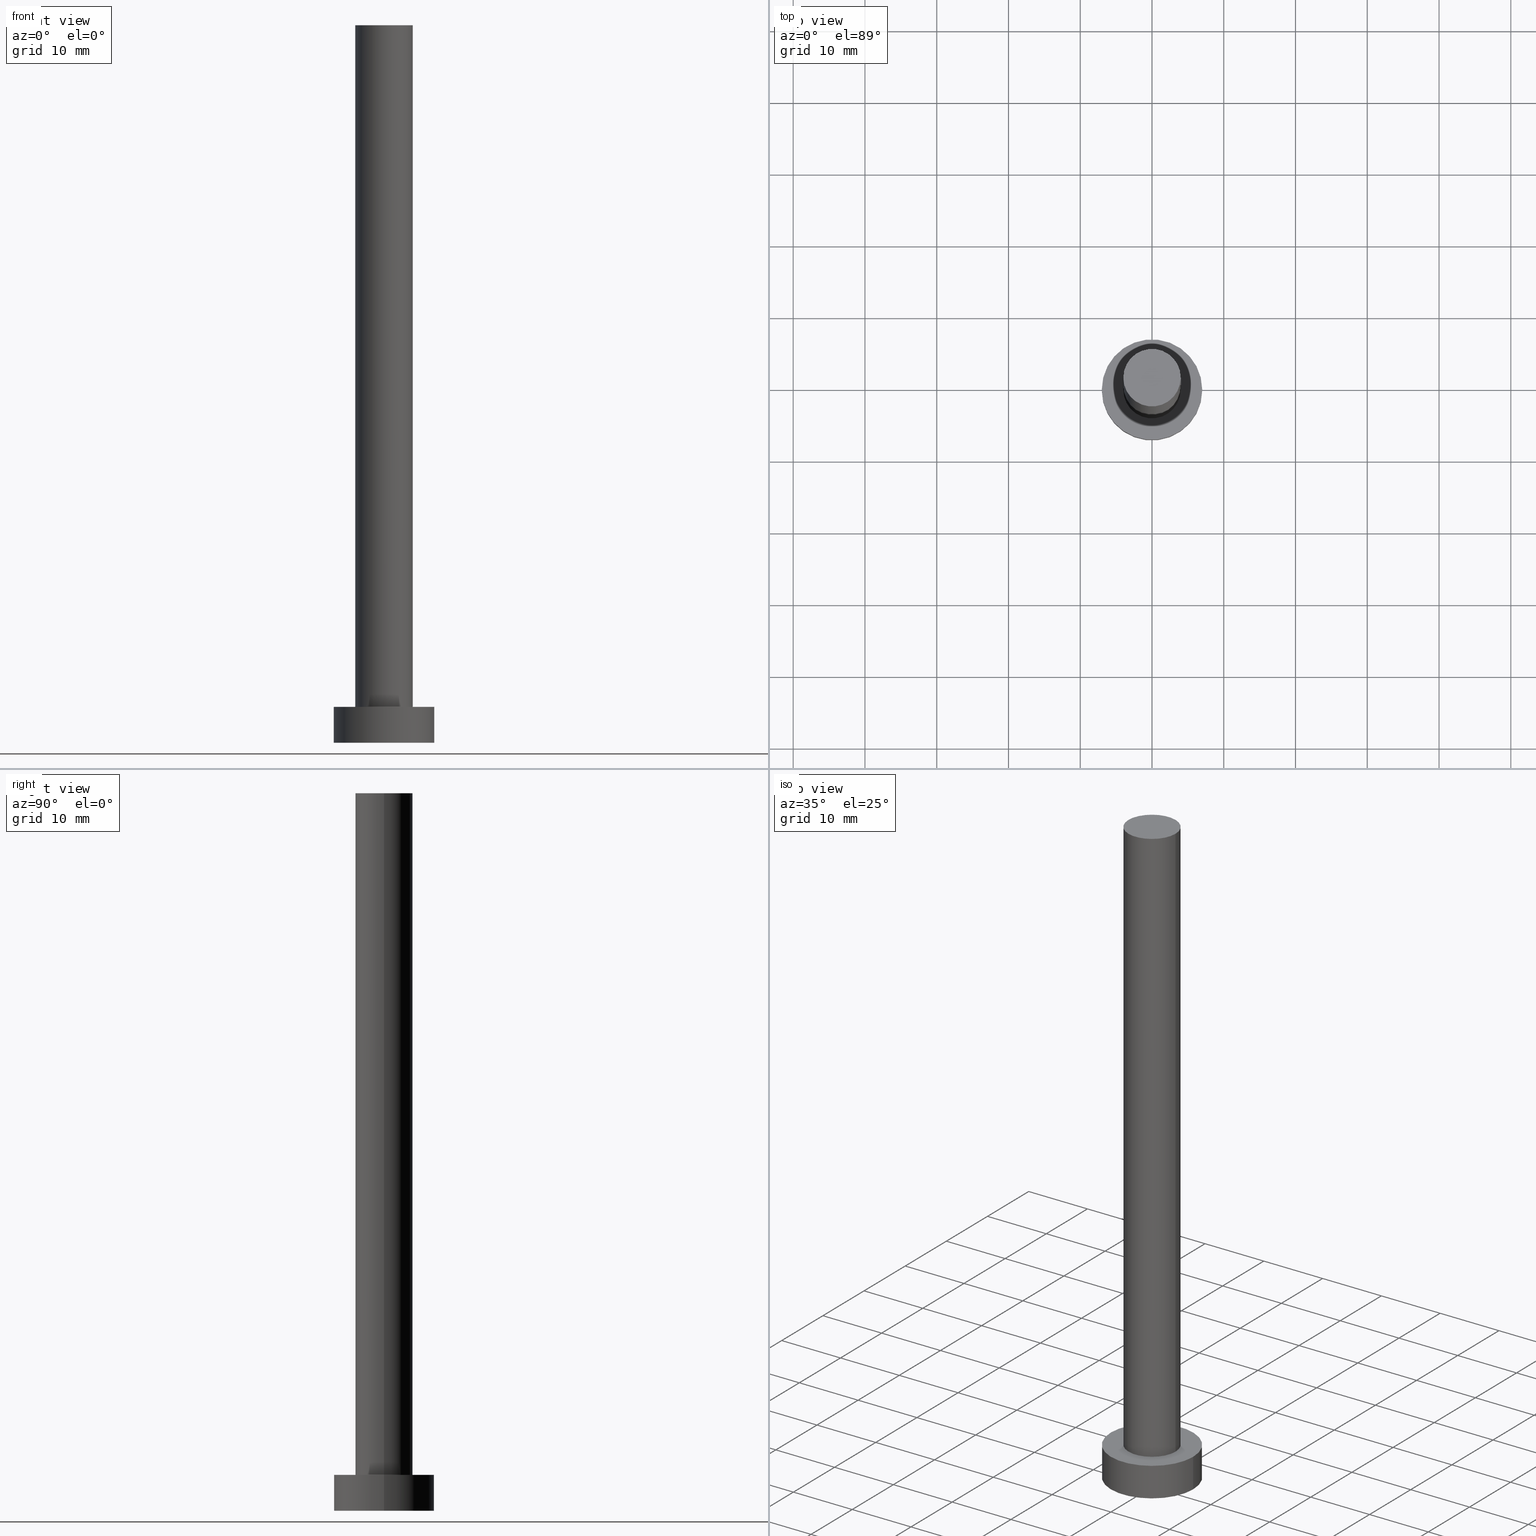
[diagram: canonical four-view strip — front | top / right | iso, engineering-drawing reading convention]
A machine part, canonical four-view strip (front | top / right | iso — engineering-drawing reading convention). The complete STEP part file that produces these views, byte-faithful:
ISO-10303-21;
HEADER;
FILE_DESCRIPTION (( 'STEP AP203' ),
    '1' );
FILE_NAME ('9c9f.STEP',
    '2023-02-13T11:45:39',
    ( '' ),
    ( '' ),
    'SwSTEP 2.0',
    'SolidWorks 2019',
    '' );
FILE_SCHEMA (( 'CONFIG_CONTROL_DESIGN' ));
ENDSEC;

DATA;
#1 = FACE_OUTER_BOUND ( 'NONE', #44, .T. ) ;
#2 = VECTOR ( 'NONE', #110, 1000.000000000000000 ) ;
#3 = APPROVAL_PERSON_ORGANIZATION ( #137, #144, #142 ) ;
#4 = EDGE_CURVE ( 'NONE', #101, #65, #156, .T. ) ;
#5 = PERSON ( 'NEUR�EN�', 'NEUR�EN�', 'NEUR�EN�', ('NEUR�EN�'), ('NEUR�EN�'), ('NEUR�EN�') ) ;
#6 = CARTESIAN_POINT ( 'NONE',  ( 7.000000000000000000, 8.572527594031473190E-16, 0.000000000000000000 ) ) ;
#7 = COORDINATED_UNIVERSAL_TIME_OFFSET ( 1, 0, .AHEAD. ) ;
#8 = LINE ( 'NONE', #171, #2 ) ;
#9 = DATE_AND_TIME ( #92, #255 ) ;
#10 = CYLINDRICAL_SURFACE ( 'NONE', #176, 4.000000000000000000 ) ;
#11 = CARTESIAN_POINT ( 'NONE',  ( 0.000000000000000000, 0.000000000000000000, 5.000000000000000000 ) ) ;
#12 = DIRECTION ( 'NONE',  ( 0.000000000000000000, 0.000000000000000000, 1.000000000000000000 ) ) ;
#13 = CC_DESIGN_APPROVAL ( #144, ( #80 ) ) ;
#14 = ADVANCED_FACE ( 'NONE', ( #1 ), #69, .T. ) ;
#15 = PRODUCT ( '9c9f', '9c9f', '', ( #218 ) ) ;
#16 = CARTESIAN_POINT ( 'NONE',  ( 4.000000000000000000, 4.898587196589412829E-16, 100.0000000000000000 ) ) ;
#17 = PERSON_AND_ORGANIZATION ( #5, #54 ) ;
#18 = ORIENTED_EDGE ( 'NONE', *, *, #37, .T. ) ;
#19 = ADVANCED_FACE ( 'NONE', ( #88 ), #235, .F. ) ;
#20 = CARTESIAN_POINT ( 'NONE',  ( 0.000000000000000000, 0.000000000000000000, 5.000000000000000000 ) ) ;
#21 = ORIENTED_EDGE ( 'NONE', *, *, #191, .T. ) ;
#22 = UNCERTAINTY_MEASURE_WITH_UNIT (LENGTH_MEASURE( 1.000000000000000082E-05 ), #49, 'distance_accuracy_value', 'NONE');
#23 = ORIENTED_EDGE ( 'NONE', *, *, #219, .T. ) ;
#24 = CIRCLE ( 'NONE', #140, 4.000000000000000000 ) ;
#25 = DATE_AND_TIME ( #179, #58 ) ;
#26 = CC_DESIGN_PERSON_AND_ORGANIZATION_ASSIGNMENT ( #247, #64, ( #15 ) ) ;
#27 = CARTESIAN_POINT ( 'NONE',  ( 0.000000000000000000, 0.000000000000000000, 5.000000000000000000 ) ) ;
#28 =( GEOMETRIC_REPRESENTATION_CONTEXT ( 3 ) GLOBAL_UNCERTAINTY_ASSIGNED_CONTEXT ( ( #22 ) ) GLOBAL_UNIT_ASSIGNED_CONTEXT ( ( #49, #197, #170 ) ) REPRESENTATION_CONTEXT ( 'NONE', 'WORKASPACE' ) );
#29 = DIRECTION ( 'NONE',  ( 0.000000000000000000, 0.000000000000000000, 1.000000000000000000 ) ) ;
#30 = CARTESIAN_POINT ( 'NONE',  ( 0.000000000000000000, 0.000000000000000000, 5.000000000000000000 ) ) ;
#31 = CC_DESIGN_PERSON_AND_ORGANIZATION_ASSIGNMENT ( #105, #254, ( #80 ) ) ;
#32 = VECTOR ( 'NONE', #246, 1000.000000000000000 ) ;
#33 = DIRECTION ( 'NONE',  ( 1.000000000000000000, 0.000000000000000000, -0.000000000000000000 ) ) ;
#34 = DIRECTION ( 'NONE',  ( 0.000000000000000000, 0.000000000000000000, 1.000000000000000000 ) ) ;
#35 = EDGE_LOOP ( 'NONE', ( #97, #42 ) ) ;
#36 = PERSON_AND_ORGANIZATION ( #5, #54 ) ;
#37 = EDGE_CURVE ( 'NONE', #209, #101, #213, .T. ) ;
#38 = ORIENTED_EDGE ( 'NONE', *, *, #37, .F. ) ;
#39 = EDGE_LOOP ( 'NONE', ( #226, #63, #178, #23 ) ) ;
#40 = DIRECTION ( 'NONE',  ( 1.000000000000000000, 0.000000000000000000, -0.000000000000000000 ) ) ;
#41 = AXIS2_PLACEMENT_3D ( 'NONE', #20, #67, #43 ) ;
#42 = ORIENTED_EDGE ( 'NONE', *, *, #236, .F. ) ;
#43 = DIRECTION ( 'NONE',  ( -1.000000000000000000, 0.000000000000000000, 0.000000000000000000 ) ) ;
#44 = EDGE_LOOP ( 'NONE', ( #244, #121, #159, #196 ) ) ;
#45 = DATE_TIME_ROLE ( 'creation_date' ) ;
#46 = CARTESIAN_POINT ( 'NONE',  ( -7.000000000000000000, 0.000000000000000000, 5.000000000000000000 ) ) ;
#47 = ORIENTED_EDGE ( 'NONE', *, *, #160, .F. ) ;
#48 = EDGE_CURVE ( 'NONE', #181, #60, #70, .T. ) ;
#49 =( LENGTH_UNIT ( ) NAMED_UNIT ( * ) SI_UNIT ( .MILLI., .METRE. ) );
#50 = AXIS2_PLACEMENT_3D ( 'NONE', #234, #143, #198 ) ;
#51 = COORDINATED_UNIVERSAL_TIME_OFFSET ( 1, 0, .AHEAD. ) ;
#52 = EDGE_CURVE ( 'NONE', #101, #209, #24, .T. ) ;
#53 = CALENDAR_DATE ( 2023, 13, 2 ) ;
#54 = ORGANIZATION ( 'NEUR�EN�', 'NEUR�EN�', '' ) ;
#55 = CARTESIAN_POINT ( 'NONE',  ( 0.000000000000000000, 0.000000000000000000, 5.000000000000000000 ) ) ;
#56 = PLANE ( 'NONE',  #202 ) ;
#57 = CARTESIAN_POINT ( 'NONE',  ( 0.000000000000000000, 0.000000000000000000, 100.0000000000000000 ) ) ;
#58 = LOCAL_TIME ( 12, 45, 39.00000000000000000, #212 ) ;
#59 = CARTESIAN_POINT ( 'NONE',  ( 0.000000000000000000, 0.000000000000000000, 100.0000000000000000 ) ) ;
#60 = VERTEX_POINT ( 'NONE', #77 ) ;
#61 = AXIS2_PLACEMENT_3D ( 'NONE', #183, #233, #71 ) ;
#62 = PRODUCT_DEFINITION_FORMATION_WITH_SPECIFIED_SOURCE ( 'LIBOVOLN�', '', #15, .NOT_KNOWN. ) ;
#63 = ORIENTED_EDGE ( 'NONE', *, *, #48, .F. ) ;
#64 = PERSON_AND_ORGANIZATION_ROLE ( 'design_owner' ) ;
#65 = VERTEX_POINT ( 'NONE', #73 ) ;
#66 = DIRECTION ( 'NONE',  ( 0.000000000000000000, 0.000000000000000000, 1.000000000000000000 ) ) ;
#67 = DIRECTION ( 'NONE',  ( -0.000000000000000000, -0.000000000000000000, -1.000000000000000000 ) ) ;
#68 = CC_DESIGN_PERSON_AND_ORGANIZATION_ASSIGNMENT ( #36, #208, ( #62 ) ) ;
#69 = CYLINDRICAL_SURFACE ( 'NONE', #61, 4.000000000000000000 ) ;
#70 = CIRCLE ( 'NONE', #86, 7.000000000000000000 ) ;
#71 = DIRECTION ( 'NONE',  ( -1.000000000000000000, 0.000000000000000000, 0.000000000000000000 ) ) ;
#72 = DIRECTION ( 'NONE',  ( 1.000000000000000000, 0.000000000000000000, 0.000000000000000000 ) ) ;
#73 = CARTESIAN_POINT ( 'NONE',  ( -4.000000000000000000, 0.000000000000000000, 5.000000000000000000 ) ) ;
#74 = FACE_OUTER_BOUND ( 'NONE', #99, .T. ) ;
#75 = DIRECTION ( 'NONE',  ( 1.000000000000000000, 0.000000000000000000, 0.000000000000000000 ) ) ;
#76 = CARTESIAN_POINT ( 'NONE',  ( -7.000000000000000000, 0.000000000000000000, 5.000000000000000000 ) ) ;
#77 = CARTESIAN_POINT ( 'NONE',  ( 7.000000000000000000, 8.572527594031473190E-16, 5.000000000000000000 ) ) ;
#78 = EDGE_CURVE ( 'NONE', #60, #115, #8, .T. ) ;
#79 = VECTOR ( 'NONE', #107, 1000.000000000000000 ) ;
#80 = PRODUCT_DEFINITION ( 'NEZN�M�', '', #62, #252 ) ;
#81 = EDGE_LOOP ( 'NONE', ( #124, #47 ) ) ;
#82 = APPLICATION_PROTOCOL_DEFINITION ( 'international standard', 'config_control_design', 1994, #169 ) ;
#83 = FACE_OUTER_BOUND ( 'NONE', #100, .T. ) ;
#84 = EDGE_LOOP ( 'NONE', ( #38, #21, #161, #203 ) ) ;
#85 = CC_DESIGN_APPROVAL ( #133, ( #87 ) ) ;
#86 = AXIS2_PLACEMENT_3D ( 'NONE', #30, #12, #96 ) ;
#87 = SECURITY_CLASSIFICATION ( '', '', #103 ) ;
#88 = FACE_OUTER_BOUND ( 'NONE', #81, .T. ) ;
#89 = CARTESIAN_POINT ( 'NONE',  ( 0.000000000000000000, 0.000000000000000000, 0.000000000000000000 ) ) ;
#90 = CARTESIAN_POINT ( 'NONE',  ( 0.000000000000000000, 0.000000000000000000, 5.000000000000000000 ) ) ;
#91 = PRODUCT_RELATED_PRODUCT_CATEGORY ( 'detail', '', ( #15 ) ) ;
#92 = CALENDAR_DATE ( 2023, 13, 2 ) ;
#93 = LOCAL_TIME ( 12, 45, 39.00000000000000000, #51 ) ;
#94 = DIRECTION ( 'NONE',  ( -1.000000000000000000, 0.000000000000000000, 0.000000000000000000 ) ) ;
#95 = DIRECTION ( 'NONE',  ( 1.000000000000000000, 0.000000000000000000, 0.000000000000000000 ) ) ;
#96 = DIRECTION ( 'NONE',  ( 1.000000000000000000, 0.000000000000000000, 0.000000000000000000 ) ) ;
#97 = ORIENTED_EDGE ( 'NONE', *, *, #126, .F. ) ;
#98 = PERSON_AND_ORGANIZATION_ROLE ( 'creator' ) ;
#99 = EDGE_LOOP ( 'NONE', ( #119, #224 ) ) ;
#100 = EDGE_LOOP ( 'NONE', ( #157, #18 ) ) ;
#101 = VERTEX_POINT ( 'NONE', #217 ) ;
#102 = CC_DESIGN_DATE_AND_TIME_ASSIGNMENT ( #231, #45, ( #80 ) ) ;
#103 = SECURITY_CLASSIFICATION_LEVEL ( 'unclassified' ) ;
#104 = CIRCLE ( 'NONE', #50, 4.000000000000000000 ) ;
#105 = PERSON_AND_ORGANIZATION ( #5, #54 ) ;
#106 = COORDINATED_UNIVERSAL_TIME_OFFSET ( 1, 0, .AHEAD. ) ;
#107 = DIRECTION ( 'NONE',  ( -0.000000000000000000, -0.000000000000000000, -1.000000000000000000 ) ) ;
#108 = DIRECTION ( 'NONE',  ( 0.000000000000000000, 0.000000000000000000, 1.000000000000000000 ) ) ;
#109 = CIRCLE ( 'NONE', #145, 7.000000000000000000 ) ;
#110 = DIRECTION ( 'NONE',  ( -0.000000000000000000, -0.000000000000000000, -1.000000000000000000 ) ) ;
#111 = CARTESIAN_POINT ( 'NONE',  ( 0.000000000000000000, 0.000000000000000000, 0.000000000000000000 ) ) ;
#112 = DIRECTION ( 'NONE',  ( 0.000000000000000000, 0.000000000000000000, 1.000000000000000000 ) ) ;
#113 = CARTESIAN_POINT ( 'NONE',  ( 0.000000000000000000, 0.000000000000000000, 100.0000000000000000 ) ) ;
#114 = DATE_TIME_ROLE ( 'classification_date' ) ;
#115 = VERTEX_POINT ( 'NONE', #6 ) ;
#116 = ORIENTED_EDGE ( 'NONE', *, *, #240, .F. ) ;
#117 = AXIS2_PLACEMENT_3D ( 'NONE', #89, #214, #199 ) ;
#118 = CC_DESIGN_APPROVAL ( #130, ( #62 ) ) ;
#119 = ORIENTED_EDGE ( 'NONE', *, *, #48, .T. ) ;
#120 = CARTESIAN_POINT ( 'NONE',  ( 0.000000000000000000, 0.000000000000000000, 0.000000000000000000 ) ) ;
#121 = ORIENTED_EDGE ( 'NONE', *, *, #52, .F. ) ;
#122 = COORDINATED_UNIVERSAL_TIME_OFFSET ( 1, 0, .AHEAD. ) ;
#123 = DATE_AND_TIME ( #163, #243 ) ;
#124 = ORIENTED_EDGE ( 'NONE', *, *, #219, .F. ) ;
#125 = CARTESIAN_POINT ( 'NONE',  ( 4.000000000000000000, 4.898587196589412829E-16, 5.000000000000000000 ) ) ;
#126 = EDGE_CURVE ( 'NONE', #65, #251, #151, .T. ) ;
#127 = AXIS2_PLACEMENT_3D ( 'NONE', #27, #139, #210 ) ;
#128 = PERSON_AND_ORGANIZATION ( #5, #54 ) ;
#129 = AXIS2_PLACEMENT_3D ( 'NONE', #59, #66, #40 ) ;
#130 = APPROVAL ( #162, 'NEUR�EN�' ) ;
#131 = ADVANCED_BREP_SHAPE_REPRESENTATION ( '9c9f', ( #188, #138 ), #28 ) ;
#132 = DIRECTION ( 'NONE',  ( -0.000000000000000000, -0.000000000000000000, -1.000000000000000000 ) ) ;
#133 = APPROVAL ( #237, 'NEUR�EN�' ) ;
#134 = LINE ( 'NONE', #16, #232 ) ;
#135 = CYLINDRICAL_SURFACE ( 'NONE', #41, 7.000000000000000000 ) ;
#136 = ADVANCED_FACE ( 'NONE', ( #216, #74 ), #56, .T. ) ;
#137 = PERSON_AND_ORGANIZATION ( #5, #54 ) ;
#138 = AXIS2_PLACEMENT_3D ( 'NONE', #172, #239, #75 ) ;
#139 = DIRECTION ( 'NONE',  ( 0.000000000000000000, 0.000000000000000000, 1.000000000000000000 ) ) ;
#140 = AXIS2_PLACEMENT_3D ( 'NONE', #200, #29, #95 ) ;
#141 = APPROVAL_PERSON_ORGANIZATION ( #128, #130, #195 ) ;
#142 = APPROVAL_ROLE ( '' ) ;
#143 = DIRECTION ( 'NONE',  ( 0.000000000000000000, 0.000000000000000000, 1.000000000000000000 ) ) ;
#144 = APPROVAL ( #206, 'NEUR�EN�' ) ;
#145 = AXIS2_PLACEMENT_3D ( 'NONE', #111, #112, #241 ) ;
#146 = APPROVAL_PERSON_ORGANIZATION ( #182, #133, #187 ) ;
#147 = DIRECTION ( 'NONE',  ( 1.000000000000000000, 0.000000000000000000, 0.000000000000000000 ) ) ;
#148 = APPROVAL_DATE_TIME ( #9, #133 ) ;
#149 = APPLICATION_CONTEXT ( 'configuration controlled 3d designs of mechanical parts and assemblies' ) ;
#150 = APPLICATION_PROTOCOL_DEFINITION ( 'international standard', 'config_control_design', 1994, #149 ) ;
#151 = CIRCLE ( 'NONE', #205, 4.000000000000000000 ) ;
#152 = AXIS2_PLACEMENT_3D ( 'NONE', #11, #174, #242 ) ;
#153 = CYLINDRICAL_SURFACE ( 'NONE', #152, 7.000000000000000000 ) ;
#154 = LOCAL_TIME ( 12, 45, 39.00000000000000000, #106 ) ;
#155 = CC_DESIGN_PERSON_AND_ORGANIZATION_ASSIGNMENT ( #17, #98, ( #62 ) ) ;
#156 = LINE ( 'NONE', #220, #32 ) ;
#157 = ORIENTED_EDGE ( 'NONE', *, *, #52, .T. ) ;
#158 = FACE_OUTER_BOUND ( 'NONE', #250, .T. ) ;
#159 = ORIENTED_EDGE ( 'NONE', *, *, #4, .T. ) ;
#160 = EDGE_CURVE ( 'NONE', #115, #228, #109, .T. ) ;
#161 = ORIENTED_EDGE ( 'NONE', *, *, #236, .T. ) ;
#162 = APPROVAL_STATUS ( 'not_yet_approved' ) ;
#163 = CALENDAR_DATE ( 2023, 13, 2 ) ;
#164 = CALENDAR_DATE ( 2023, 13, 2 ) ;
#165 = CLOSED_SHELL ( 'NONE', ( #168, #215, #184, #136, #19, #14, #207 ) ) ;
#166 = PERSON_AND_ORGANIZATION_ROLE ( 'classification_officer' ) ;
#167 = CIRCLE ( 'NONE', #186, 7.000000000000000000 ) ;
#168 = ADVANCED_FACE ( 'NONE', ( #189 ), #10, .T. ) ;
#169 = APPLICATION_CONTEXT ( 'configuration controlled 3d designs of mechanical parts and assemblies' ) ;
#170 =( NAMED_UNIT ( * ) SI_UNIT ( $, .STERADIAN. ) SOLID_ANGLE_UNIT ( ) );
#171 = CARTESIAN_POINT ( 'NONE',  ( 7.000000000000000000, 8.572527594031473190E-16, 5.000000000000000000 ) ) ;
#172 = CARTESIAN_POINT ( 'NONE',  ( 0.000000000000000000, 0.000000000000000000, 0.000000000000000000 ) ) ;
#173 = DIRECTION ( 'NONE',  ( 0.000000000000000000, 0.000000000000000000, 1.000000000000000000 ) ) ;
#174 = DIRECTION ( 'NONE',  ( -0.000000000000000000, -0.000000000000000000, -1.000000000000000000 ) ) ;
#175 = DIRECTION ( 'NONE',  ( -0.000000000000000000, -0.000000000000000000, -1.000000000000000000 ) ) ;
#176 = AXIS2_PLACEMENT_3D ( 'NONE', #57, #132, #94 ) ;
#177 = APPROVAL_DATE_TIME ( #123, #130 ) ;
#178 = ORIENTED_EDGE ( 'NONE', *, *, #230, .T. ) ;
#179 = CALENDAR_DATE ( 2023, 13, 2 ) ;
#180 = CC_DESIGN_PERSON_AND_ORGANIZATION_ASSIGNMENT ( #204, #166, ( #87 ) ) ;
#181 = VERTEX_POINT ( 'NONE', #76 ) ;
#182 = PERSON_AND_ORGANIZATION ( #5, #54 ) ;
#183 = CARTESIAN_POINT ( 'NONE',  ( 0.000000000000000000, 0.000000000000000000, 100.0000000000000000 ) ) ;
#184 = ADVANCED_FACE ( 'NONE', ( #190 ), #153, .T. ) ;
#185 = LINE ( 'NONE', #46, #79 ) ;
#186 = AXIS2_PLACEMENT_3D ( 'NONE', #120, #108, #72 ) ;
#187 = APPROVAL_ROLE ( '' ) ;
#188 = MANIFOLD_SOLID_BREP ( 'P�idat vysunut�m3', #165 ) ;
#189 = FACE_OUTER_BOUND ( 'NONE', #84, .T. ) ;
#190 = FACE_OUTER_BOUND ( 'NONE', #39, .T. ) ;
#191 = EDGE_CURVE ( 'NONE', #209, #251, #134, .T. ) ;
#192 = DIRECTION ( 'NONE',  ( 1.000000000000000000, 0.000000000000000000, 0.000000000000000000 ) ) ;
#193 = CC_DESIGN_DATE_AND_TIME_ASSIGNMENT ( #221, #114, ( #87 ) ) ;
#194 = ORIENTED_EDGE ( 'NONE', *, *, #230, .F. ) ;
#195 = APPROVAL_ROLE ( '' ) ;
#196 = ORIENTED_EDGE ( 'NONE', *, *, #126, .T. ) ;
#197 =( NAMED_UNIT ( * ) PLANE_ANGLE_UNIT ( ) SI_UNIT ( $, .RADIAN. ) );
#198 = DIRECTION ( 'NONE',  ( 1.000000000000000000, 0.000000000000000000, 0.000000000000000000 ) ) ;
#199 = DIRECTION ( 'NONE',  ( 1.000000000000000000, 0.000000000000000000, -0.000000000000000000 ) ) ;
#200 = CARTESIAN_POINT ( 'NONE',  ( 0.000000000000000000, 0.000000000000000000, 100.0000000000000000 ) ) ;
#201 = SHAPE_DEFINITION_REPRESENTATION ( #225, #131 ) ;
#202 = AXIS2_PLACEMENT_3D ( 'NONE', #55, #34, #33 ) ;
#203 = ORIENTED_EDGE ( 'NONE', *, *, #4, .F. ) ;
#204 = PERSON_AND_ORGANIZATION ( #5, #54 ) ;
#205 = AXIS2_PLACEMENT_3D ( 'NONE', #90, #238, #147 ) ;
#206 = APPROVAL_STATUS ( 'not_yet_approved' ) ;
#207 = ADVANCED_FACE ( 'NONE', ( #83 ), #223, .T. ) ;
#208 = PERSON_AND_ORGANIZATION_ROLE ( 'design_supplier' ) ;
#209 = VERTEX_POINT ( 'NONE', #245 ) ;
#210 = DIRECTION ( 'NONE',  ( 1.000000000000000000, 0.000000000000000000, 0.000000000000000000 ) ) ;
#211 = APPROVAL_DATE_TIME ( #25, #144 ) ;
#212 = COORDINATED_UNIVERSAL_TIME_OFFSET ( 1, 0, .AHEAD. ) ;
#213 = CIRCLE ( 'NONE', #253, 4.000000000000000000 ) ;
#214 = DIRECTION ( 'NONE',  ( 0.000000000000000000, 0.000000000000000000, 1.000000000000000000 ) ) ;
#215 = ADVANCED_FACE ( 'NONE', ( #158 ), #135, .T. ) ;
#216 = FACE_BOUND ( 'NONE', #35, .T. ) ;
#217 = CARTESIAN_POINT ( 'NONE',  ( -4.000000000000000000, 0.000000000000000000, 100.0000000000000000 ) ) ;
#218 = MECHANICAL_CONTEXT ( 'NONE', #149, 'mechanical' ) ;
#219 = EDGE_CURVE ( 'NONE', #228, #115, #167, .T. ) ;
#220 = CARTESIAN_POINT ( 'NONE',  ( -4.000000000000000000, 0.000000000000000000, 100.0000000000000000 ) ) ;
#221 = DATE_AND_TIME ( #53, #93 ) ;
#222 = CC_DESIGN_SECURITY_CLASSIFICATION ( #87, ( #62 ) ) ;
#223 = PLANE ( 'NONE',  #129 ) ;
#224 = ORIENTED_EDGE ( 'NONE', *, *, #240, .T. ) ;
#225 = PRODUCT_DEFINITION_SHAPE ( 'NONE', 'NONE',  #80 ) ;
#226 = ORIENTED_EDGE ( 'NONE', *, *, #78, .F. ) ;
#227 = ORIENTED_EDGE ( 'NONE', *, *, #78, .T. ) ;
#228 = VERTEX_POINT ( 'NONE', #229 ) ;
#229 = CARTESIAN_POINT ( 'NONE',  ( -7.000000000000000000, 0.000000000000000000, 0.000000000000000000 ) ) ;
#230 = EDGE_CURVE ( 'NONE', #181, #228, #185, .T. ) ;
#231 = DATE_AND_TIME ( #164, #154 ) ;
#232 = VECTOR ( 'NONE', #175, 1000.000000000000000 ) ;
#233 = DIRECTION ( 'NONE',  ( -0.000000000000000000, -0.000000000000000000, -1.000000000000000000 ) ) ;
#234 = CARTESIAN_POINT ( 'NONE',  ( 0.000000000000000000, 0.000000000000000000, 5.000000000000000000 ) ) ;
#235 = PLANE ( 'NONE',  #117 ) ;
#236 = EDGE_CURVE ( 'NONE', #251, #65, #104, .T. ) ;
#237 = APPROVAL_STATUS ( 'not_yet_approved' ) ;
#238 = DIRECTION ( 'NONE',  ( 0.000000000000000000, 0.000000000000000000, 1.000000000000000000 ) ) ;
#239 = DIRECTION ( 'NONE',  ( 0.000000000000000000, 0.000000000000000000, 1.000000000000000000 ) ) ;
#240 = EDGE_CURVE ( 'NONE', #60, #181, #248, .T. ) ;
#241 = DIRECTION ( 'NONE',  ( 1.000000000000000000, 0.000000000000000000, 0.000000000000000000 ) ) ;
#242 = DIRECTION ( 'NONE',  ( -1.000000000000000000, 0.000000000000000000, 0.000000000000000000 ) ) ;
#243 = LOCAL_TIME ( 12, 45, 39.00000000000000000, #122 ) ;
#244 = ORIENTED_EDGE ( 'NONE', *, *, #191, .F. ) ;
#245 = CARTESIAN_POINT ( 'NONE',  ( 4.000000000000000000, 4.898587196589412829E-16, 100.0000000000000000 ) ) ;
#246 = DIRECTION ( 'NONE',  ( -0.000000000000000000, -0.000000000000000000, -1.000000000000000000 ) ) ;
#247 = PERSON_AND_ORGANIZATION ( #5, #54 ) ;
#248 = CIRCLE ( 'NONE', #127, 7.000000000000000000 ) ;
#249 = ORIENTED_EDGE ( 'NONE', *, *, #160, .T. ) ;
#250 = EDGE_LOOP ( 'NONE', ( #116, #227, #249, #194 ) ) ;
#251 = VERTEX_POINT ( 'NONE', #125 ) ;
#252 = DESIGN_CONTEXT ( 'detailed design', #169, 'design' ) ;
#253 = AXIS2_PLACEMENT_3D ( 'NONE', #113, #173, #192 ) ;
#254 = PERSON_AND_ORGANIZATION_ROLE ( 'creator' ) ;
#255 = LOCAL_TIME ( 12, 45, 39.00000000000000000, #7 ) ;
ENDSEC;
END-ISO-10303-21;
